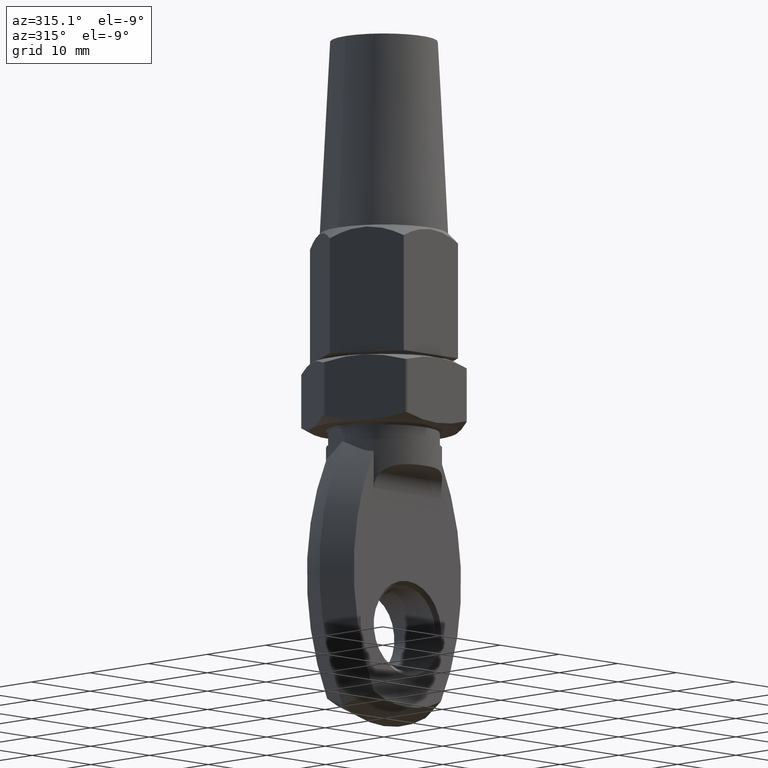
[diagram: clean part render]
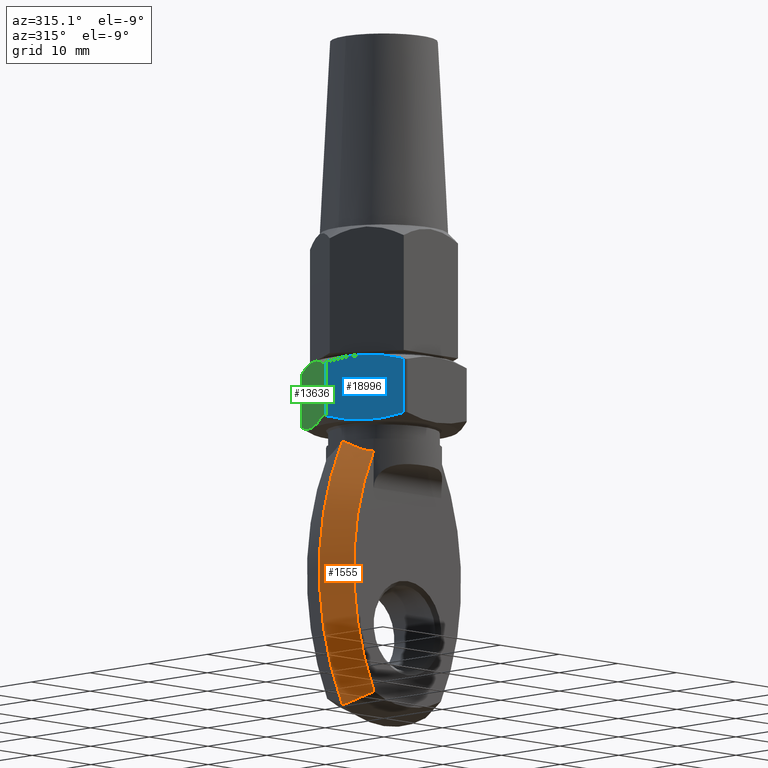
[diagram: same view with three faces highlighted in distinct colors, each labeled with its STEP entity id]
A machine part, auxiliary view with three faces highlighted in distinct colors.
Their STEP definitions:

[orange] entity #1555 — the highlighted conical surface has half-angle 25 deg.
#15 = CARTESIAN_POINT ( 'NONE',  ( -6.234269078327382200, -2.862826162117409800, -1.308571300949175300 ) ) ;
#238 = DIRECTION ( 'NONE',  ( 0.0000000000000000000, 0.0000000000000000000, 1.000000000000000000 ) ) ;
#305 = CARTESIAN_POINT ( 'NONE',  ( 24.00000000000000400, -4.000000000000000000, -16.11479982947690500 ) ) ;
#765 = CARTESIAN_POINT ( 'NONE',  ( -6.605938529736414800, -1.334563344979647900, -31.77171112412415600 ) ) ;
#1301 = EDGE_CURVE ( 'NONE', #7749, #11096, #12428, .T. ) ;
#1346 = CIRCLE ( 'NONE', #3807, 35.00000000000006400 ) ;
#1555 = ADVANCED_FACE ( 'NONE', ( #18809 ), #10642, .T. ) ;
#1901 = DIRECTION ( 'NONE',  ( 0.0000000000000000000, 1.000000000000000000, 0.0000000000000000000 ) ) ;
#2518 = CARTESIAN_POINT ( 'NONE',  ( -5.681918644637108600, -4.000000000000000000, -30.84221123143795400 ) ) ;
#2858 = CARTESIAN_POINT ( 'NONE',  ( -5.744562646538022400, -4.000000000000000000, -1.514322645643384500 ) ) ;
#3144 = CARTESIAN_POINT ( 'NONE',  ( -6.410950310214270000, -2.298771942586750800, -1.071657956122349200 ) ) ;
#3655 = EDGE_CURVE ( 'NONE', #17783, #16653, #17252, .T. ) ;
#3807 = AXIS2_PLACEMENT_3D ( 'NONE', #15026, #1901, #238 ) ;
#3931 = EDGE_CURVE ( 'NONE', #9766, #7749, #13772, .T. ) ;
#4710 = DIRECTION ( 'NONE',  ( -0.0000000000000000000, 1.000000000000000000, -0.0000000000000000000 ) ) ;
#6746 = ORIENTED_EDGE ( 'NONE', *, *, #3655, .F. ) ;
#7201 = AXIS2_PLACEMENT_3D ( 'NONE', #305, #4710, #10659 ) ;
#7509 = CARTESIAN_POINT ( 'NONE',  ( -6.410950310214270000, -2.298771942586750800, -1.071657956122349200 ) ) ;
#7749 = VERTEX_POINT ( 'NONE', #9391 ) ;
#8200 = CARTESIAN_POINT ( 'NONE',  ( -7.069490283168398100, -0.0000000000000000000, -32.22959965895381600 ) ) ;
#9362 = ORIENTED_EDGE ( 'NONE', *, *, #1301, .T. ) ;
#9391 = CARTESIAN_POINT ( 'NONE',  ( -6.410950310214270000, -2.298771942586750800, -1.071657956122349200 ) ) ;
#9503 = CARTESIAN_POINT ( 'NONE',  ( -5.744562646538022400, -4.000000000000000000, -1.514322645643384500 ) ) ;
#9526 = EDGE_LOOP ( 'NONE', ( #17890, #6746, #16349, #10787, #9362 ) ) ;
#9742 = CARTESIAN_POINT ( 'NONE',  ( -6.143304436799286200, -2.668028565887392100, -31.30973878994047900 ) ) ;
#9766 = VERTEX_POINT ( 'NONE', #9503 ) ;
#10125 = CARTESIAN_POINT ( 'NONE',  ( 24.00000000000000400, 0.0000000000000000000, -16.11479982947690500 ) ) ;
#10157 = AXIS2_PLACEMENT_3D ( 'NONE', #10125, #13223, #19182 ) ;
#10642 = CONICAL_SURFACE ( 'NONE', #10157, 35.00000000000006400, 0.4363323129985826600 ) ;
#10659 = DIRECTION ( 'NONE',  ( 0.0000000000000000000, 0.0000000000000000000, -1.000000000000000000 ) ) ;
#10787 = ORIENTED_EDGE ( 'NONE', *, *, #3931, .T. ) ;
#10843 = CARTESIAN_POINT ( 'NONE',  ( -6.629617768534857600, -1.543642502236816300, -0.7198141007176760400 ) ) ;
#11096 = VERTEX_POINT ( 'NONE', #15162 ) ;
#11951 = CARTESIAN_POINT ( 'NONE',  ( -6.013022872672920900, -3.430841824107389900, -1.459073266902928000 ) ) ;
#12428 = B_SPLINE_CURVE_WITH_KNOTS ( 'NONE', 3,
 ( #3144, #10843, #13635, #15338 ),
 .UNSPECIFIED., .F., .F.,
 ( 4, 4 ),
 ( 0.4317100615486594300, 1.000000000000000000 ),
 .UNSPECIFIED. ) ;
#13223 = DIRECTION ( 'NONE',  ( -0.0000000000000000000, 1.000000000000000000, -0.0000000000000000000 ) ) ;
#13635 = CARTESIAN_POINT ( 'NONE',  ( -6.849139353915034300, -0.7774185057456104400, -0.3625162028206141400 ) ) ;
#13772 = B_SPLINE_CURVE_WITH_KNOTS ( 'NONE', 3,
 ( #2858, #16303, #11951, #15, #16425, #7509 ),
 .UNSPECIFIED., .F., .F.,
 ( 4, 2, 4 ),
 ( 0.0000000000000000000, 0.0009407204879077680400, 0.001881440975815536100 ),
 .UNSPECIFIED. ) ;
#14609 = CARTESIAN_POINT ( 'NONE',  ( -7.069490283168398100, -0.0000000000000000000, -32.22959965895381600 ) ) ;
#15026 = CARTESIAN_POINT ( 'NONE',  ( 24.00000000000000400, 0.0000000000000000000, -16.11479982947690500 ) ) ;
#15162 = CARTESIAN_POINT ( 'NONE',  ( -7.069490283168396300, -0.0000000000000000000, -5.292663450632263000E-020 ) ) ;
#15338 = CARTESIAN_POINT ( 'NONE',  ( -7.069490283168396300, -0.0000000000000000000, -5.292663450632263000E-020 ) ) ;
#15610 = CIRCLE ( 'NONE', #7201, 33.13476936738007300 ) ;
#16303 = CARTESIAN_POINT ( 'NONE',  ( -5.887363064494866000, -3.715235398470583900, -1.503887305703923900 ) ) ;
#16349 = ORIENTED_EDGE ( 'NONE', *, *, #18760, .T. ) ;
#16425 = CARTESIAN_POINT ( 'NONE',  ( -6.330240339991880700, -2.577511904304806500, -1.201929839258166100 ) ) ;
#16653 = VERTEX_POINT ( 'NONE', #8200 ) ;
#17252 = B_SPLINE_CURVE_WITH_KNOTS ( 'NONE', 3,
 ( #18669, #9742, #765, #14609 ),
 .UNSPECIFIED., .F., .F.,
 ( 4, 4 ),
 ( 0.0000000000000000000, 0.004455356517817775400 ),
 .UNSPECIFIED. ) ;
#17783 = VERTEX_POINT ( 'NONE', #2518 ) ;
#17890 = ORIENTED_EDGE ( 'NONE', *, *, #18704, .F. ) ;
#18669 = CARTESIAN_POINT ( 'NONE',  ( -5.681918644637108600, -4.000000000000000000, -30.84221123143795400 ) ) ;
#18704 = EDGE_CURVE ( 'NONE', #16653, #11096, #1346, .T. ) ;
#18760 = EDGE_CURVE ( 'NONE', #17783, #9766, #15610, .T. ) ;
#18809 = FACE_OUTER_BOUND ( 'NONE', #9526, .T. ) ;
#19182 = DIRECTION ( 'NONE',  ( 0.0000000000000000000, 0.0000000000000000000, 1.000000000000000000 ) ) ;

[blue] entity #18996 — the highlighted planar face has unit normal (0.866, 0.5, 0).
#156 = FACE_OUTER_BOUND ( 'NONE', #3696, .T. ) ;
#314 = CARTESIAN_POINT ( 'NONE',  ( -7.794228634059945400, -4.000000000000000000, 4.500000000000000000 ) ) ;
#417 = CARTESIAN_POINT ( 'NONE',  ( -8.211831261830360200, -4.000000000000008000, 3.776691031327366900 ) ) ;
#1043 = EDGE_CURVE ( 'NONE', #17829, #9464, #16480, .T. ) ;
#1132 = B_SPLINE_CURVE_WITH_KNOTS ( 'NONE', 3,
 ( #8224, #15386, #16884, #14067, #9595, #8037, #18657, #10953 ),
 .UNSPECIFIED., .F., .F.,
 ( 4, 2, 2, 4 ),
 ( 0.005257893453559886300, 0.006493159382140126900, 0.007728425310720368400, 0.01019895716788085000 ),
 .UNSPECIFIED. ) ;
#1268 = PLANE ( 'NONE',  #5554 ) ;
#1327 = CARTESIAN_POINT ( 'NONE',  ( -5.340489990003482600, 3.277725454518101600, 8.750000000000957500 ) ) ;
#1777 = CARTESIAN_POINT ( 'NONE',  ( -6.963658522143419700, -3.917530764621806500, 5.938589633087584500 ) ) ;
#1842 = EDGE_CURVE ( 'NONE', #9464, #3669, #16482, .T. ) ;
#1878 = EDGE_CURVE ( 'NONE', #7619, #17829, #1132, .T. ) ;
#2519 = CARTESIAN_POINT ( 'NONE',  ( -10.39230484541326200, 4.000000000000000000, -1.707127382677887800E-015 ) ) ;
#2557 = CARTESIAN_POINT ( 'NONE',  ( -10.24796727811585500, 4.000000000000000000, 0.2499999999999990800 ) ) ;
#2771 = EDGE_CURVE ( 'NONE', #11462, #18756, #16703, .T. ) ;
#2955 = B_SPLINE_CURVE_WITH_KNOTS ( 'NONE', 3,
 ( #1327, #11798, #13135, #8979, #8916, #8790 ),
 .UNSPECIFIED., .F., .F.,
 ( 4, 2, 4 ),
 ( 0.0002975789497955576400, 0.002777736201677721700, 0.005257893453559886300 ),
 .UNSPECIFIED. ) ;
#3292 = CARTESIAN_POINT ( 'NONE',  ( -6.145183925392109900, -3.680823192153086100, 7.356229219365308900 ) ) ;
#3572 = CARTESIAN_POINT ( 'NONE',  ( -9.846311974500345300, -3.499756780380036700, 0.9456873929915672300 ) ) ;
#3669 = VERTEX_POINT ( 'NONE', #12975 ) ;
#3696 = EDGE_LOOP ( 'NONE', ( #16144, #13049, #4647, #5831, #19210, #9140 ) ) ;
#4421 = CARTESIAN_POINT ( 'NONE',  ( -7.794228634059945400, 4.000000000000000000, 4.500000000000000000 ) ) ;
#4501 = DIRECTION ( 'NONE',  ( -0.0000000000000000000, 1.000000000000000000, -0.0000000000000000000 ) ) ;
#4562 = EDGE_CURVE ( 'NONE', #3669, #11462, #18432, .T. ) ;
#4647 = ORIENTED_EDGE ( 'NONE', *, *, #1842, .T. ) ;
#4781 = CARTESIAN_POINT ( 'NONE',  ( -5.741184557810243800, -3.499225694536935100, 8.055976650242792300 ) ) ;
#5554 = AXIS2_PLACEMENT_3D ( 'NONE', #2519, #19099, #12962 ) ;
#5804 = CARTESIAN_POINT ( 'NONE',  ( -10.24796727811640900, -3.277725454518101200, 0.2499999999990413500 ) ) ;
#5831 = ORIENTED_EDGE ( 'NONE', *, *, #4562, .T. ) ;
#6158 = CARTESIAN_POINT ( 'NONE',  ( -7.377267069982559100, -3.983105304560281100, 5.222198613785413300 ) ) ;
#6275 = CARTESIAN_POINT ( 'NONE',  ( -5.340489990003482600, 3.277725454518101600, 8.750000000000957500 ) ) ;
#6455 = CARTESIAN_POINT ( 'NONE',  ( -9.441757675994248100, -3.681425994525250500, 1.646395992424510000 ) ) ;
#6723 = CARTESIAN_POINT ( 'NONE',  ( -10.24796727811640900, -3.277725454518101200, 0.2499999999990413500 ) ) ;
#7619 = VERTEX_POINT ( 'NONE', #4421 ) ;
#8037 = CARTESIAN_POINT ( 'NONE',  ( -9.443273342727783500, 3.680823192153083400, 1.643770780634686200 ) ) ;
#8224 = CARTESIAN_POINT ( 'NONE',  ( -7.794228634059945400, 4.000000000000000000, 4.500000000000000000 ) ) ;
#8569 = VECTOR ( 'NONE', #8646, 1000.000000000000000 ) ;
#8646 = DIRECTION ( 'NONE',  ( 0.0000000000000000000, -1.000000000000000000, 0.0000000000000000000 ) ) ;
#8790 = CARTESIAN_POINT ( 'NONE',  ( -7.794228634059945400, 4.000000000000000000, 4.500000000000000000 ) ) ;
#8916 = CARTESIAN_POINT ( 'NONE',  ( -7.376626006289531500, 4.000000000000006200, 5.223308968672629500 ) ) ;
#8979 = CARTESIAN_POINT ( 'NONE',  ( -6.963914278392269200, 3.931905003436078100, 5.938146650270224900 ) ) ;
#9140 = ORIENTED_EDGE ( 'NONE', *, *, #10978, .T. ) ;
#9299 = CARTESIAN_POINT ( 'NONE',  ( -6.758165510878794400, -3.868911075294668900, 6.294513969198242800 ) ) ;
#9464 = VERTEX_POINT ( 'NONE', #5804 ) ;
#9595 = CARTESIAN_POINT ( 'NONE',  ( -8.830291757241097300, 3.868911075294668500, 2.705486030801752300 ) ) ;
#10953 = CARTESIAN_POINT ( 'NONE',  ( -10.24796727811585500, 3.277725454518406700, 0.2499999999999985800 ) ) ;
#10978 = EDGE_CURVE ( 'NONE', #18756, #7619, #2955, .T. ) ;
#11462 = VERTEX_POINT ( 'NONE', #17443 ) ;
#11798 = CARTESIAN_POINT ( 'NONE',  ( -5.742145293619544500, 3.499756780380036700, 8.054312607008428800 ) ) ;
#12652 = CARTESIAN_POINT ( 'NONE',  ( -8.624542989727618900, -3.931905003436077200, 3.061853349729772400 ) ) ;
#12962 = DIRECTION ( 'NONE',  ( -0.5000000000000001100, 0.0000000000000000000, -0.8660254037844386000 ) ) ;
#12975 = CARTESIAN_POINT ( 'NONE',  ( -7.794228634059945400, -4.000000000000000000, 4.500000000000000000 ) ) ;
#13049 = ORIENTED_EDGE ( 'NONE', *, *, #1043, .T. ) ;
#13135 = CARTESIAN_POINT ( 'NONE',  ( -6.146699592125642700, 3.681425994525251000, 7.353604007575488500 ) ) ;
#14067 = CARTESIAN_POINT ( 'NONE',  ( -8.624798745976473700, 3.917530764621807400, 3.061410366912408900 ) ) ;
#15163 = CARTESIAN_POINT ( 'NONE',  ( -5.340489990004036800, -3.277725454518407600, 8.749999999999998200 ) ) ;
#15386 = CARTESIAN_POINT ( 'NONE',  ( -8.002219598092121800, 4.000000000000006200, 4.139749082781037300 ) ) ;
#16144 = ORIENTED_EDGE ( 'NONE', *, *, #1878, .T. ) ;
#16480 = LINE ( 'NONE', #2557, #8569 ) ;
#16482 = B_SPLINE_CURVE_WITH_KNOTS ( 'NONE', 3,
 ( #6723, #3572, #6455, #12652, #417, #17148 ),
 .UNSPECIFIED., .F., .F.,
 ( 4, 2, 4 ),
 ( 0.0002975789497955590500, 0.002777736201677723400, 0.005257893453559887200 ),
 .UNSPECIFIED. ) ;
#16703 = LINE ( 'NONE', #18341, #18786 ) ;
#16724 = CARTESIAN_POINT ( 'NONE',  ( -7.586237670027768900, -4.000000000000007100, 4.860250917218958300 ) ) ;
#16884 = CARTESIAN_POINT ( 'NONE',  ( -8.211190198137327200, 3.983105304560280200, 3.777801386214583600 ) ) ;
#17148 = CARTESIAN_POINT ( 'NONE',  ( -7.794228634059945400, -4.000000000000000000, 4.500000000000000000 ) ) ;
#17443 = CARTESIAN_POINT ( 'NONE',  ( -5.340489990004036800, -3.277725454518407600, 8.749999999999998200 ) ) ;
#17459 = CARTESIAN_POINT ( 'NONE',  ( -10.24796727811585500, 3.277725454518406700, 0.2499999999999985800 ) ) ;
#17829 = VERTEX_POINT ( 'NONE', #17459 ) ;
#18341 = CARTESIAN_POINT ( 'NONE',  ( -5.340489990004035900, 4.000000000000000000, 8.749999999999998200 ) ) ;
#18432 = B_SPLINE_CURVE_WITH_KNOTS ( 'NONE', 3,
 ( #314, #16724, #6158, #1777, #9299, #3292, #4781, #15163 ),
 .UNSPECIFIED., .F., .F.,
 ( 4, 2, 2, 4 ),
 ( 0.005257893453559887200, 0.006493159382140128700, 0.007728425310720369300, 0.01019895716788084800 ),
 .UNSPECIFIED. ) ;
#18657 = CARTESIAN_POINT ( 'NONE',  ( -9.847272710309647800, 3.499225694536933800, 0.9440233497572039200 ) ) ;
#18756 = VERTEX_POINT ( 'NONE', #6275 ) ;
#18786 = VECTOR ( 'NONE', #4501, 1000.000000000000000 ) ;
#18996 = ADVANCED_FACE ( 'NONE', ( #156 ), #1268, .F. ) ;
#19099 = DIRECTION ( 'NONE',  ( 0.8660254037844386000, 0.0000000000000000000, -0.5000000000000001100 ) ) ;
#19210 = ORIENTED_EDGE ( 'NONE', *, *, #2771, .T. ) ;

[green] entity #13636 — the highlighted planar face has unit normal (0.866, -0.5, 0).
#554 = CARTESIAN_POINT ( 'NONE',  ( -6.758165510878797000, 3.868911075294667200, -6.294513969198244600 ) ) ;
#779 = ORIENTED_EDGE ( 'NONE', *, *, #3957, .T. ) ;
#1228 = VERTEX_POINT ( 'NONE', #10589 ) ;
#1516 = B_SPLINE_CURVE_WITH_KNOTS ( 'NONE', 3,
 ( #12800, #6993, #2674, #10327, #16250, #2738 ),
 .UNSPECIFIED., .F., .F.,
 ( 4, 2, 4 ),
 ( 0.0002975789497955596400, 0.002777736201677723000, 0.005257893453559886300 ),
 .UNSPECIFIED. ) ;
#1784 = ORIENTED_EDGE ( 'NONE', *, *, #3597, .T. ) ;
#2201 = CARTESIAN_POINT ( 'NONE',  ( -9.441757675994249900, 3.681425994525250500, -1.646395992424513100 ) ) ;
#2390 = CARTESIAN_POINT ( 'NONE',  ( -7.794228634059945400, 4.000000000000000000, -4.499999999999998200 ) ) ;
#2422 = ORIENTED_EDGE ( 'NONE', *, *, #6731, .T. ) ;
#2674 = CARTESIAN_POINT ( 'NONE',  ( -6.146699592125645300, -3.681425994525250500, -7.353604007575486700 ) ) ;
#2738 = CARTESIAN_POINT ( 'NONE',  ( -7.794228634059945400, -4.000000000000000000, -4.499999999999998200 ) ) ;
#3597 = EDGE_CURVE ( 'NONE', #1228, #11122, #6398, .T. ) ;
#3641 = CARTESIAN_POINT ( 'NONE',  ( -5.340489990003487000, -3.277725454518101200, -8.750000000000955700 ) ) ;
#3957 = EDGE_CURVE ( 'NONE', #8520, #6484, #14329, .T. ) ;
#4157 = CARTESIAN_POINT ( 'NONE',  ( -5.340489990004039500, 3.277725454518406700, -8.749999999999998200 ) ) ;
#4339 = DIRECTION ( 'NONE',  ( 0.4999999999999999400, 0.0000000000000000000, -0.8660254037844387100 ) ) ;
#5102 = B_SPLINE_CURVE_WITH_KNOTS ( 'NONE', 3,
 ( #9609, #8170, #2201, #9674, #11106, #2390 ),
 .UNSPECIFIED., .F., .F.,
 ( 4, 2, 4 ),
 ( 0.0002975789497955585000, 0.002777736201677721700, 0.005257893453559885400 ),
 .UNSPECIFIED. ) ;
#5771 = EDGE_LOOP ( 'NONE', ( #2422, #1784, #7531, #11610, #779, #11978 ) ) ;
#5926 = CARTESIAN_POINT ( 'NONE',  ( -9.847272710309644200, -3.499225694536932000, -0.9440233497572044800 ) ) ;
#6398 = LINE ( 'NONE', #6666, #19021 ) ;
#6484 = VERTEX_POINT ( 'NONE', #3641 ) ;
#6666 = CARTESIAN_POINT ( 'NONE',  ( -10.24796727811585700, 4.000000000000000000, -0.2499999999999985000 ) ) ;
#6731 = EDGE_CURVE ( 'NONE', #8454, #1228, #17114, .T. ) ;
#6851 = CARTESIAN_POINT ( 'NONE',  ( -5.340489990004039500, 3.277725454518406700, -8.749999999999998200 ) ) ;
#6993 = CARTESIAN_POINT ( 'NONE',  ( -5.742145293619550700, -3.499756780380036700, -8.054312607008430500 ) ) ;
#7238 = CARTESIAN_POINT ( 'NONE',  ( -5.196152422706632900, 4.000000000000000000, -8.999999999999998200 ) ) ;
#7444 = CARTESIAN_POINT ( 'NONE',  ( -5.340489990004039500, 4.000000000000000000, -8.749999999999998200 ) ) ;
#7500 = VERTEX_POINT ( 'NONE', #8688 ) ;
#7531 = ORIENTED_EDGE ( 'NONE', *, *, #14573, .T. ) ;
#7573 = CARTESIAN_POINT ( 'NONE',  ( -10.24796727811585500, -3.277725454518406700, -0.2500000000000006700 ) ) ;
#7809 = CARTESIAN_POINT ( 'NONE',  ( -10.24796727811640900, 3.277725454518102000, -0.2499999999990437900 ) ) ;
#7874 = FACE_OUTER_BOUND ( 'NONE', #5771, .T. ) ;
#8170 = CARTESIAN_POINT ( 'NONE',  ( -9.846311974500343600, 3.499756780380036700, -0.9456873929915695600 ) ) ;
#8454 = VERTEX_POINT ( 'NONE', #10179 ) ;
#8520 = VERTEX_POINT ( 'NONE', #4157 ) ;
#8688 = CARTESIAN_POINT ( 'NONE',  ( -7.794228634059945400, 4.000000000000000000, -4.499999999999998200 ) ) ;
#8733 = DIRECTION ( 'NONE',  ( 0.8660254037844387100, -0.0000000000000000000, 0.4999999999999999400 ) ) ;
#8934 = CARTESIAN_POINT ( 'NONE',  ( -8.624798745976473700, -3.917530764621806500, -3.061410366912409800 ) ) ;
#9001 = CARTESIAN_POINT ( 'NONE',  ( -8.002219598092125400, -4.000000000000007100, -4.139749082781039000 ) ) ;
#9325 = DIRECTION ( 'NONE',  ( 0.0000000000000000000, -1.000000000000000000, 0.0000000000000000000 ) ) ;
#9609 = CARTESIAN_POINT ( 'NONE',  ( -10.24796727811640900, 3.277725454518102000, -0.2499999999990437900 ) ) ;
#9674 = CARTESIAN_POINT ( 'NONE',  ( -8.624542989727618900, 3.931905003436074500, -3.061853349729774600 ) ) ;
#10179 = CARTESIAN_POINT ( 'NONE',  ( -7.794228634059945400, -4.000000000000000000, -4.499999999999998200 ) ) ;
#10327 = CARTESIAN_POINT ( 'NONE',  ( -6.963914278392273600, -3.931905003436076300, -5.938146650270224900 ) ) ;
#10589 = CARTESIAN_POINT ( 'NONE',  ( -10.24796727811585500, -3.277725454518406700, -0.2500000000000006700 ) ) ;
#11032 = CARTESIAN_POINT ( 'NONE',  ( -5.741184557810248300, 3.499225694536932400, -8.055976650242792300 ) ) ;
#11106 = CARTESIAN_POINT ( 'NONE',  ( -8.211831261830358400, 4.000000000000006200, -3.776691031327369600 ) ) ;
#11122 = VERTEX_POINT ( 'NONE', #7809 ) ;
#11610 = ORIENTED_EDGE ( 'NONE', *, *, #12893, .T. ) ;
#11853 = EDGE_CURVE ( 'NONE', #6484, #8454, #1516, .T. ) ;
#11885 = CARTESIAN_POINT ( 'NONE',  ( -7.794228634059945400, -4.000000000000000000, -4.499999999999998200 ) ) ;
#11949 = CARTESIAN_POINT ( 'NONE',  ( -9.443273342727785300, -3.680823192153083000, -1.643770780634687500 ) ) ;
#11978 = ORIENTED_EDGE ( 'NONE', *, *, #11853, .T. ) ;
#12586 = CARTESIAN_POINT ( 'NONE',  ( -7.377267069982561800, 3.983105304560280200, -5.222198613785417700 ) ) ;
#12597 = DIRECTION ( 'NONE',  ( -0.0000000000000000000, 1.000000000000000000, -0.0000000000000000000 ) ) ;
#12658 = AXIS2_PLACEMENT_3D ( 'NONE', #7238, #8733, #4339 ) ;
#12800 = CARTESIAN_POINT ( 'NONE',  ( -5.340489990003487000, -3.277725454518101200, -8.750000000000955700 ) ) ;
#12893 = EDGE_CURVE ( 'NONE', #7500, #8520, #18768, .T. ) ;
#13636 = ADVANCED_FACE ( 'NONE', ( #7874 ), #14719, .F. ) ;
#14329 = LINE ( 'NONE', #7444, #17848 ) ;
#14573 = EDGE_CURVE ( 'NONE', #11122, #7500, #5102, .T. ) ;
#14719 = PLANE ( 'NONE',  #12658 ) ;
#15119 = CARTESIAN_POINT ( 'NONE',  ( -8.211190198137332500, -3.983105304560280200, -3.777801386214584500 ) ) ;
#15523 = CARTESIAN_POINT ( 'NONE',  ( -6.963658522143422400, 3.917530764621804700, -5.938589633087588900 ) ) ;
#16250 = CARTESIAN_POINT ( 'NONE',  ( -7.376626006289534100, -4.000000000000006200, -5.223308968672628600 ) ) ;
#17013 = CARTESIAN_POINT ( 'NONE',  ( -7.586237670027768100, 4.000000000000007100, -4.860250917218961900 ) ) ;
#17114 = B_SPLINE_CURVE_WITH_KNOTS ( 'NONE', 3,
 ( #11885, #9001, #15119, #8934, #19358, #11949, #5926, #7573 ),
 .UNSPECIFIED., .F., .F.,
 ( 4, 2, 2, 4 ),
 ( 0.005257893453559886300, 0.006493159382140126000, 0.007728425310720365800, 0.01019895716788084600 ),
 .UNSPECIFIED. ) ;
#17848 = VECTOR ( 'NONE', #9325, 1000.000000000000000 ) ;
#18455 = CARTESIAN_POINT ( 'NONE',  ( -7.794228634059945400, 4.000000000000000000, -4.499999999999998200 ) ) ;
#18659 = CARTESIAN_POINT ( 'NONE',  ( -6.145183925392112600, 3.680823192153082500, -7.356229219365310700 ) ) ;
#18768 = B_SPLINE_CURVE_WITH_KNOTS ( 'NONE', 3,
 ( #18455, #17013, #12586, #15523, #554, #18659, #11032, #6851 ),
 .UNSPECIFIED., .F., .F.,
 ( 4, 2, 2, 4 ),
 ( 0.005257893453559885400, 0.006493159382140123400, 0.007728425310720362300, 0.01019895716788084300 ),
 .UNSPECIFIED. ) ;
#19021 = VECTOR ( 'NONE', #12597, 1000.000000000000000 ) ;
#19358 = CARTESIAN_POINT ( 'NONE',  ( -8.830291757241099000, -3.868911075294668000, -2.705486030801753200 ) ) ;